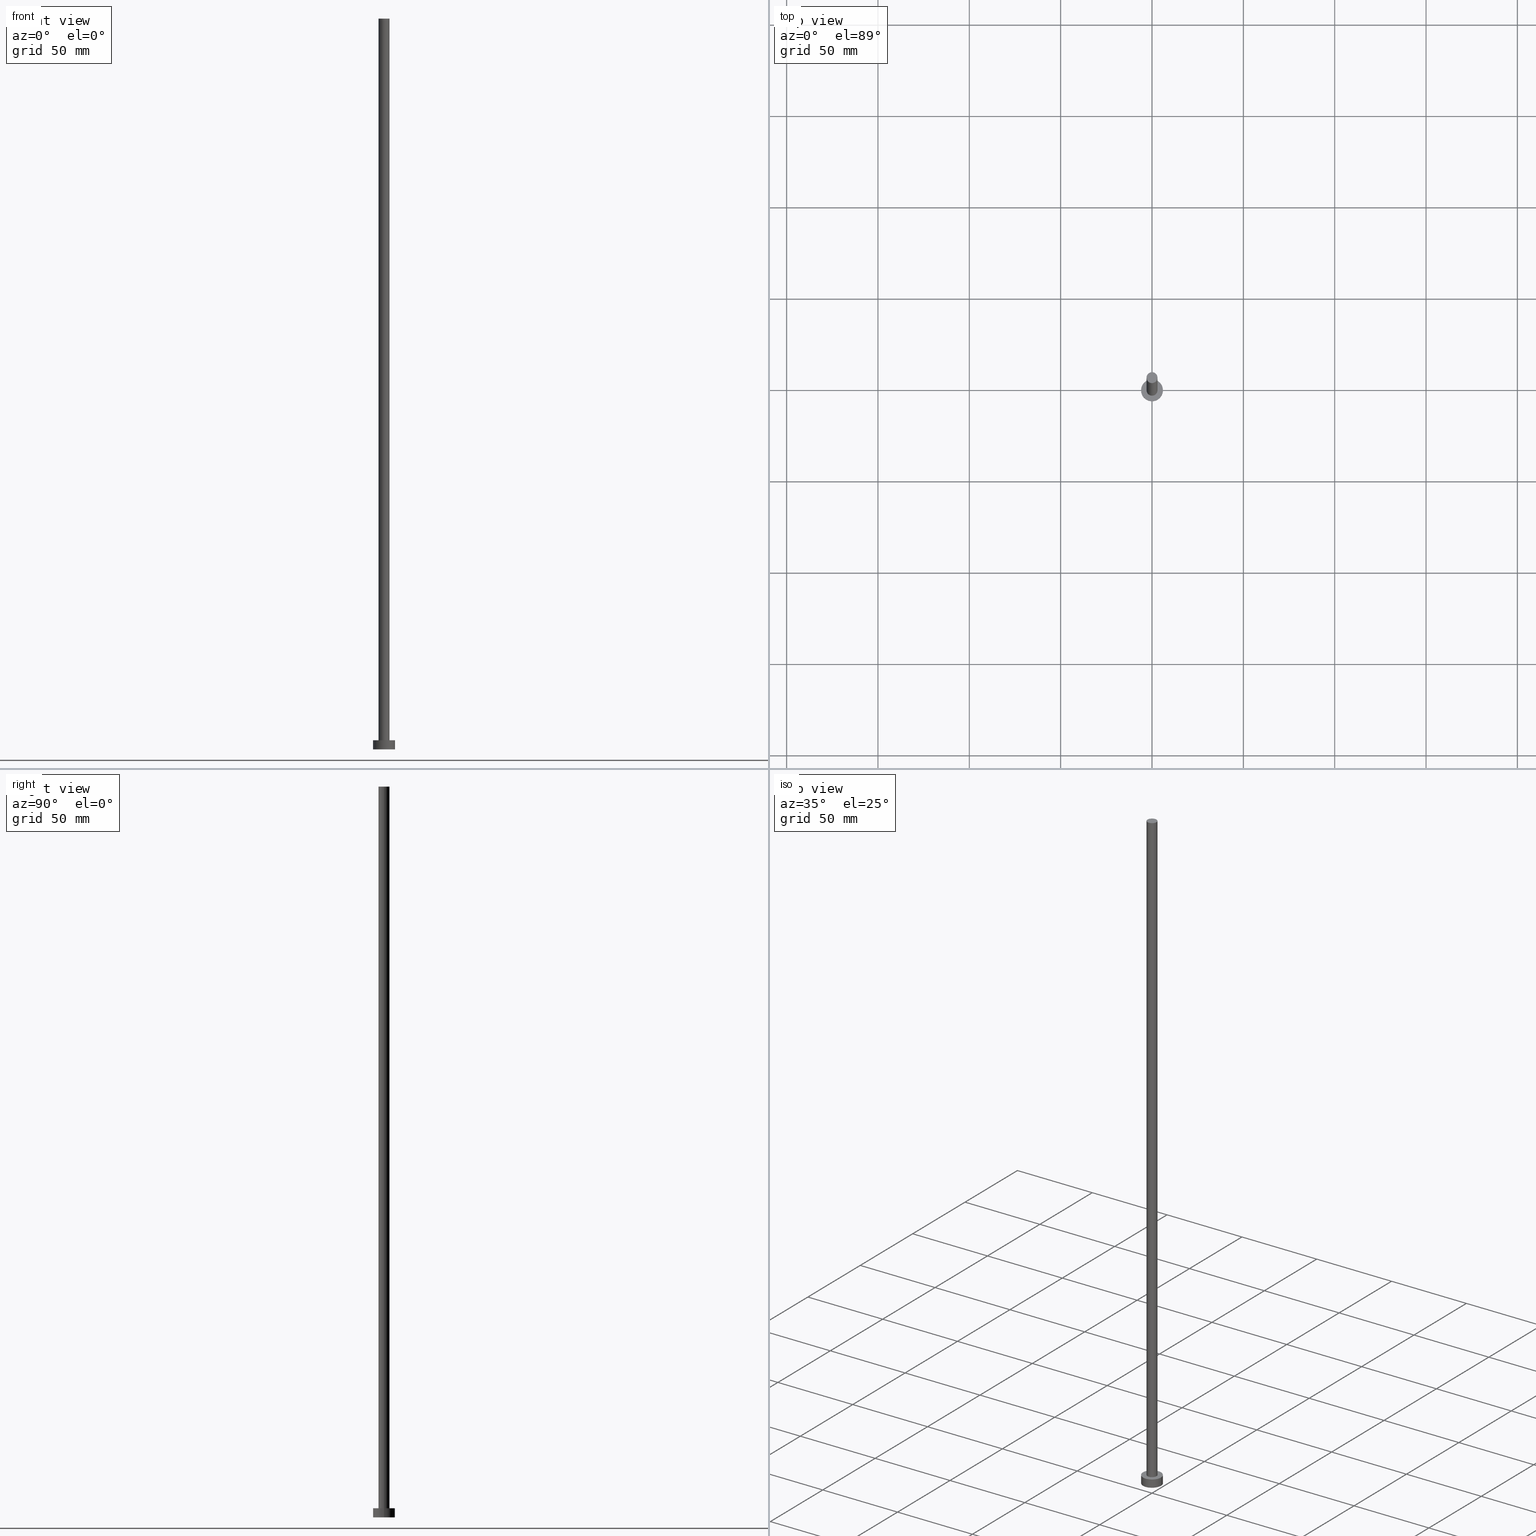
[diagram: canonical four-view strip — front | top / right | iso, engineering-drawing reading convention]
A machine part, canonical four-view strip (front | top / right | iso — engineering-drawing reading convention). The complete STEP part file that produces these views, byte-faithful:
ISO-10303-21;
HEADER;
FILE_DESCRIPTION (( 'STEP AP203' ),
    '1' );
FILE_NAME ('0809.STEP',
    '2023-02-13T12:37:12',
    ( '' ),
    ( '' ),
    'SwSTEP 2.0',
    'SolidWorks 2019',
    '' );
FILE_SCHEMA (( 'CONFIG_CONTROL_DESIGN' ));
ENDSEC;

DATA;
#1 = DIRECTION ( 'NONE',  ( 1.000000000000000000, 0.000000000000000000, -0.000000000000000000 ) ) ;
#2 = CARTESIAN_POINT ( 'NONE',  ( 0.000000000000000000, 0.000000000000000000, 400.0000000000000000 ) ) ;
#3 = APPROVAL_STATUS ( 'not_yet_approved' ) ;
#4 = PERSON ( 'NEUR�EN�', 'NEUR�EN�', 'NEUR�EN�', ('NEUR�EN�'), ('NEUR�EN�'), ('NEUR�EN�') ) ;
#5 = LOCAL_TIME ( 13, 37, 12.00000000000000000, #134 ) ;
#6 = LINE ( 'NONE', #140, #223 ) ;
#7 = ADVANCED_FACE ( 'NONE', ( #64 ), #229, .T. ) ;
#8 = ORIENTED_EDGE ( 'NONE', *, *, #119, .F. ) ;
#9 = EDGE_LOOP ( 'NONE', ( #25, #60, #41, #22 ) ) ;
#10 = DIRECTION ( 'NONE',  ( 0.000000000000000000, 0.000000000000000000, 1.000000000000000000 ) ) ;
#11 = FACE_OUTER_BOUND ( 'NONE', #185, .T. ) ;
#12 = EDGE_CURVE ( 'NONE', #82, #45, #171, .T. ) ;
#13 = CARTESIAN_POINT ( 'NONE',  ( 0.000000000000000000, 0.000000000000000000, 5.000000000000000000 ) ) ;
#14 = VECTOR ( 'NONE', #46, 1000.000000000000000 ) ;
#15 = DATE_TIME_ROLE ( 'classification_date' ) ;
#16 = DIRECTION ( 'NONE',  ( -0.000000000000000000, -0.000000000000000000, -1.000000000000000000 ) ) ;
#17 = PLANE ( 'NONE',  #74 ) ;
#18 = PERSON_AND_ORGANIZATION_ROLE ( 'classification_officer' ) ;
#19 = DIRECTION ( 'NONE',  ( 1.000000000000000000, 0.000000000000000000, 0.000000000000000000 ) ) ;
#20 = CALENDAR_DATE ( 2023, 13, 2 ) ;
#21 = DATE_TIME_ROLE ( 'creation_date' ) ;
#22 = ORIENTED_EDGE ( 'NONE', *, *, #99, .F. ) ;
#23 = LOCAL_TIME ( 13, 37, 12.00000000000000000, #222 ) ;
#24 = ORIENTED_EDGE ( 'NONE', *, *, #120, .T. ) ;
#25 = ORIENTED_EDGE ( 'NONE', *, *, #236, .F. ) ;
#26 = CARTESIAN_POINT ( 'NONE',  ( 0.000000000000000000, 0.000000000000000000, 0.000000000000000000 ) ) ;
#27 = APPROVAL_PERSON_ORGANIZATION ( #240, #245, #159 ) ;
#28 = CC_DESIGN_PERSON_AND_ORGANIZATION_ASSIGNMENT ( #190, #253, ( #76 ) ) ;
#29 = PLANE ( 'NONE',  #204 ) ;
#30 = CARTESIAN_POINT ( 'NONE',  ( -3.000000000000000444, 0.000000000000000000, 400.0000000000000000 ) ) ;
#31 = CC_DESIGN_APPROVAL ( #248, ( #76 ) ) ;
#32 = CIRCLE ( 'NONE', #58, 3.000000000000000444 ) ;
#33 = APPROVAL_ROLE ( '' ) ;
#34 = APPLICATION_CONTEXT ( 'configuration controlled 3d designs of mechanical parts and assemblies' ) ;
#35 = CALENDAR_DATE ( 2023, 13, 2 ) ;
#36 = DATE_AND_TIME ( #97, #5 ) ;
#37 = ORIENTED_EDGE ( 'NONE', *, *, #38, .T. ) ;
#38 = EDGE_CURVE ( 'NONE', #186, #246, #6, .T. ) ;
#39 = ORIENTED_EDGE ( 'NONE', *, *, #120, .F. ) ;
#40 = LOCAL_TIME ( 13, 37, 12.00000000000000000, #177 ) ;
#41 = ORIENTED_EDGE ( 'NONE', *, *, #12, .T. ) ;
#42 = CARTESIAN_POINT ( 'NONE',  ( 0.000000000000000000, 0.000000000000000000, 400.0000000000000000 ) ) ;
#43 = EDGE_CURVE ( 'NONE', #186, #142, #78, .T. ) ;
#44 = VECTOR ( 'NONE', #168, 1000.000000000000000 ) ;
#45 = VERTEX_POINT ( 'NONE', #254 ) ;
#46 = DIRECTION ( 'NONE',  ( -0.000000000000000000, -0.000000000000000000, -1.000000000000000000 ) ) ;
#47 = CARTESIAN_POINT ( 'NONE',  ( 0.000000000000000000, 0.000000000000000000, 5.000000000000000000 ) ) ;
#48 = APPLICATION_CONTEXT ( 'configuration controlled 3d designs of mechanical parts and assemblies' ) ;
#49 = DATE_AND_TIME ( #35, #90 ) ;
#50 = LINE ( 'NONE', #207, #67 ) ;
#51 = PRODUCT_DEFINITION_FORMATION_WITH_SPECIFIED_SOURCE ( 'LIBOVOLN�', '', #179, .NOT_KNOWN. ) ;
#52 = PLANE ( 'NONE',  #188 ) ;
#53 =( LENGTH_UNIT ( ) NAMED_UNIT ( * ) SI_UNIT ( .MILLI., .METRE. ) );
#54 = DIRECTION ( 'NONE',  ( -1.000000000000000000, 0.000000000000000000, 0.000000000000000000 ) ) ;
#55 = CC_DESIGN_APPROVAL ( #245, ( #51 ) ) ;
#56 =( GEOMETRIC_REPRESENTATION_CONTEXT ( 3 ) GLOBAL_UNCERTAINTY_ASSIGNED_CONTEXT ( ( #209 ) ) GLOBAL_UNIT_ASSIGNED_CONTEXT ( ( #53, #237, #136 ) ) REPRESENTATION_CONTEXT ( 'NONE', 'WORKASPACE' ) );
#57 = CALENDAR_DATE ( 2023, 13, 2 ) ;
#58 = AXIS2_PLACEMENT_3D ( 'NONE', #47, #191, #230 ) ;
#59 = EDGE_LOOP ( 'NONE', ( #83, #105 ) ) ;
#60 = ORIENTED_EDGE ( 'NONE', *, *, #169, .T. ) ;
#61 = ADVANCED_FACE ( 'NONE', ( #89, #231 ), #52, .T. ) ;
#62 = EDGE_LOOP ( 'NONE', ( #121, #201 ) ) ;
#63 = AXIS2_PLACEMENT_3D ( 'NONE', #234, #178, #19 ) ;
#64 = FACE_OUTER_BOUND ( 'NONE', #205, .T. ) ;
#65 = DIRECTION ( 'NONE',  ( 1.000000000000000000, 0.000000000000000000, 0.000000000000000000 ) ) ;
#66 = CARTESIAN_POINT ( 'NONE',  ( 0.000000000000000000, 0.000000000000000000, 5.000000000000000000 ) ) ;
#67 = VECTOR ( 'NONE', #110, 1000.000000000000000 ) ;
#68 = CARTESIAN_POINT ( 'NONE',  ( -3.000000000000000444, 0.000000000000000000, 5.000000000000000000 ) ) ;
#69 = CARTESIAN_POINT ( 'NONE',  ( 0.000000000000000000, 0.000000000000000000, 0.000000000000000000 ) ) ;
#70 = CC_DESIGN_PERSON_AND_ORGANIZATION_ASSIGNMENT ( #195, #117, ( #51 ) ) ;
#71 = CARTESIAN_POINT ( 'NONE',  ( 0.000000000000000000, 0.000000000000000000, 400.0000000000000000 ) ) ;
#72 = DIRECTION ( 'NONE',  ( 0.000000000000000000, 0.000000000000000000, 1.000000000000000000 ) ) ;
#73 = CARTESIAN_POINT ( 'NONE',  ( 3.000000000000000444, 3.673940397442059868E-16, 400.0000000000000000 ) ) ;
#74 = AXIS2_PLACEMENT_3D ( 'NONE', #96, #88, #1 ) ;
#75 = APPROVAL_DATE_TIME ( #218, #200 ) ;
#76 = PRODUCT_DEFINITION ( 'NEZN�M�', '', #51, #87 ) ;
#77 = APPROVAL_DATE_TIME ( #81, #245 ) ;
#78 = CIRCLE ( 'NONE', #156, 3.000000000000000444 ) ;
#79 = CLOSED_SHELL ( 'NONE', ( #7, #162, #139, #61, #181, #221, #157 ) ) ;
#80 = AXIS2_PLACEMENT_3D ( 'NONE', #66, #250, #109 ) ;
#81 = DATE_AND_TIME ( #20, #239 ) ;
#82 = VERTEX_POINT ( 'NONE', #252 ) ;
#83 = ORIENTED_EDGE ( 'NONE', *, *, #208, .F. ) ;
#84 = ORIENTED_EDGE ( 'NONE', *, *, #43, .F. ) ;
#85 = EDGE_LOOP ( 'NONE', ( #167, #244 ) ) ;
#86 = EDGE_CURVE ( 'NONE', #246, #146, #32, .T. ) ;
#87 = DESIGN_CONTEXT ( 'detailed design', #48, 'design' ) ;
#88 = DIRECTION ( 'NONE',  ( 0.000000000000000000, 0.000000000000000000, 1.000000000000000000 ) ) ;
#89 = FACE_BOUND ( 'NONE', #85, .T. ) ;
#90 = LOCAL_TIME ( 13, 37, 12.00000000000000000, #118 ) ;
#91 = DIRECTION ( 'NONE',  ( -0.000000000000000000, -0.000000000000000000, -1.000000000000000000 ) ) ;
#92 = SHAPE_DEFINITION_REPRESENTATION ( #241, #164 ) ;
#93 = LINE ( 'NONE', #132, #14 ) ;
#94 = APPROVAL_STATUS ( 'not_yet_approved' ) ;
#95 = DIRECTION ( 'NONE',  ( 0.000000000000000000, 0.000000000000000000, 1.000000000000000000 ) ) ;
#96 = CARTESIAN_POINT ( 'NONE',  ( 0.000000000000000000, 0.000000000000000000, 400.0000000000000000 ) ) ;
#97 = CALENDAR_DATE ( 2023, 13, 2 ) ;
#98 = PERSON_AND_ORGANIZATION ( #4, #143 ) ;
#99 = EDGE_CURVE ( 'NONE', #107, #45, #173, .T. ) ;
#100 = DIRECTION ( 'NONE',  ( 0.000000000000000000, 0.000000000000000000, 1.000000000000000000 ) ) ;
#101 = PRODUCT_RELATED_PRODUCT_CATEGORY ( 'detail', '', ( #179 ) ) ;
#102 = ORIENTED_EDGE ( 'NONE', *, *, #38, .F. ) ;
#103 = AXIS2_PLACEMENT_3D ( 'NONE', #2, #16, #54 ) ;
#104 = CC_DESIGN_DATE_AND_TIME_ASSIGNMENT ( #36, #15, ( #114 ) ) ;
#105 = ORIENTED_EDGE ( 'NONE', *, *, #12, .F. ) ;
#106 = ORIENTED_EDGE ( 'NONE', *, *, #217, .F. ) ;
#107 = VERTEX_POINT ( 'NONE', #126 ) ;
#108 = AXIS2_PLACEMENT_3D ( 'NONE', #71, #152, #147 ) ;
#109 = DIRECTION ( 'NONE',  ( -1.000000000000000000, 0.000000000000000000, 0.000000000000000000 ) ) ;
#110 = DIRECTION ( 'NONE',  ( -0.000000000000000000, -0.000000000000000000, -1.000000000000000000 ) ) ;
#111 = CYLINDRICAL_SURFACE ( 'NONE', #158, 6.000000000000000888 ) ;
#112 = CIRCLE ( 'NONE', #228, 6.000000000000000888 ) ;
#113 = CARTESIAN_POINT ( 'NONE',  ( 0.000000000000000000, 0.000000000000000000, 5.000000000000000000 ) ) ;
#114 = SECURITY_CLASSIFICATION ( '', '', #151 ) ;
#115 = PERSON_AND_ORGANIZATION ( #4, #143 ) ;
#116 = CARTESIAN_POINT ( 'NONE',  ( 6.000000000000000888, 7.347880794884120722E-16, 5.000000000000000000 ) ) ;
#117 = PERSON_AND_ORGANIZATION_ROLE ( 'creator' ) ;
#118 = COORDINATED_UNIVERSAL_TIME_OFFSET ( 1, 0, .AHEAD. ) ;
#119 = EDGE_CURVE ( 'NONE', #142, #186, #183, .T. ) ;
#120 = EDGE_CURVE ( 'NONE', #142, #146, #93, .T. ) ;
#121 = ORIENTED_EDGE ( 'NONE', *, *, #217, .T. ) ;
#122 = DIRECTION ( 'NONE',  ( 0.000000000000000000, 0.000000000000000000, 1.000000000000000000 ) ) ;
#123 = AXIS2_PLACEMENT_3D ( 'NONE', #26, #10, #65 ) ;
#124 = VERTEX_POINT ( 'NONE', #116 ) ;
#125 = CARTESIAN_POINT ( 'NONE',  ( 0.000000000000000000, 0.000000000000000000, 400.0000000000000000 ) ) ;
#126 = CARTESIAN_POINT ( 'NONE',  ( -6.000000000000000888, 0.000000000000000000, 5.000000000000000000 ) ) ;
#127 = FACE_OUTER_BOUND ( 'NONE', #9, .T. ) ;
#128 = APPROVAL_DATE_TIME ( #49, #248 ) ;
#129 = DIRECTION ( 'NONE',  ( 1.000000000000000000, 0.000000000000000000, -0.000000000000000000 ) ) ;
#130 = DIRECTION ( 'NONE',  ( 1.000000000000000000, 0.000000000000000000, 0.000000000000000000 ) ) ;
#131 = CIRCLE ( 'NONE', #227, 3.000000000000000444 ) ;
#132 = CARTESIAN_POINT ( 'NONE',  ( -3.000000000000000444, 0.000000000000000000, 400.0000000000000000 ) ) ;
#133 = DIRECTION ( 'NONE',  ( 1.000000000000000000, 0.000000000000000000, 0.000000000000000000 ) ) ;
#134 = COORDINATED_UNIVERSAL_TIME_OFFSET ( 1, 0, .AHEAD. ) ;
#135 = APPLICATION_PROTOCOL_DEFINITION ( 'international standard', 'config_control_design', 1994, #48 ) ;
#136 =( NAMED_UNIT ( * ) SI_UNIT ( $, .STERADIAN. ) SOLID_ANGLE_UNIT ( ) );
#137 = APPROVAL_PERSON_ORGANIZATION ( #216, #248, #33 ) ;
#138 = AXIS2_PLACEMENT_3D ( 'NONE', #125, #206, #249 ) ;
#139 = ADVANCED_FACE ( 'NONE', ( #11 ), #194, .T. ) ;
#140 = CARTESIAN_POINT ( 'NONE',  ( 3.000000000000000444, 3.673940397442059868E-16, 400.0000000000000000 ) ) ;
#141 = ORIENTED_EDGE ( 'NONE', *, *, #99, .T. ) ;
#142 = VERTEX_POINT ( 'NONE', #30 ) ;
#143 = ORGANIZATION ( 'NEUR�EN�', 'NEUR�EN�', '' ) ;
#144 = CC_DESIGN_PERSON_AND_ORGANIZATION_ASSIGNMENT ( #192, #18, ( #114 ) ) ;
#145 = APPROVAL_PERSON_ORGANIZATION ( #98, #200, #155 ) ;
#146 = VERTEX_POINT ( 'NONE', #68 ) ;
#147 = DIRECTION ( 'NONE',  ( 1.000000000000000000, 0.000000000000000000, 0.000000000000000000 ) ) ;
#148 = CC_DESIGN_DATE_AND_TIME_ASSIGNMENT ( #243, #21, ( #76 ) ) ;
#149 = FACE_OUTER_BOUND ( 'NONE', #165, .T. ) ;
#150 = MANIFOLD_SOLID_BREP ( 'P�idat vysunut�m3', #79 ) ;
#151 = SECURITY_CLASSIFICATION_LEVEL ( 'unclassified' ) ;
#152 = DIRECTION ( 'NONE',  ( 0.000000000000000000, 0.000000000000000000, 1.000000000000000000 ) ) ;
#153 = CYLINDRICAL_SURFACE ( 'NONE', #103, 3.000000000000000444 ) ;
#154 = AXIS2_PLACEMENT_3D ( 'NONE', #172, #100, #235 ) ;
#155 = APPROVAL_ROLE ( '' ) ;
#156 = AXIS2_PLACEMENT_3D ( 'NONE', #42, #214, #176 ) ;
#157 = ADVANCED_FACE ( 'NONE', ( #149 ), #17, .T. ) ;
#158 = AXIS2_PLACEMENT_3D ( 'NONE', #13, #91, #233 ) ;
#159 = APPROVAL_ROLE ( '' ) ;
#160 = ORIENTED_EDGE ( 'NONE', *, *, #43, .T. ) ;
#161 = ORIENTED_EDGE ( 'NONE', *, *, #208, .T. ) ;
#162 = ADVANCED_FACE ( 'NONE', ( #127 ), #111, .T. ) ;
#163 = ORIENTED_EDGE ( 'NONE', *, *, #189, .T. ) ;
#164 = ADVANCED_BREP_SHAPE_REPRESENTATION ( '0809', ( #150, #251 ), #56 ) ;
#165 = EDGE_LOOP ( 'NONE', ( #203, #160 ) ) ;
#166 = CIRCLE ( 'NONE', #63, 6.000000000000000888 ) ;
#167 = ORIENTED_EDGE ( 'NONE', *, *, #189, .F. ) ;
#168 = DIRECTION ( 'NONE',  ( -0.000000000000000000, -0.000000000000000000, -1.000000000000000000 ) ) ;
#169 = EDGE_CURVE ( 'NONE', #124, #82, #50, .T. ) ;
#170 = DIRECTION ( 'NONE',  ( 0.000000000000000000, 0.000000000000000000, 1.000000000000000000 ) ) ;
#171 = CIRCLE ( 'NONE', #123, 6.000000000000000888 ) ;
#172 = CARTESIAN_POINT ( 'NONE',  ( 0.000000000000000000, 0.000000000000000000, 5.000000000000000000 ) ) ;
#173 = LINE ( 'NONE', #211, #44 ) ;
#174 = FACE_OUTER_BOUND ( 'NONE', #184, .T. ) ;
#175 = PERSON_AND_ORGANIZATION ( #4, #143 ) ;
#176 = DIRECTION ( 'NONE',  ( 1.000000000000000000, 0.000000000000000000, 0.000000000000000000 ) ) ;
#177 = COORDINATED_UNIVERSAL_TIME_OFFSET ( 1, 0, .AHEAD. ) ;
#178 = DIRECTION ( 'NONE',  ( 0.000000000000000000, 0.000000000000000000, 1.000000000000000000 ) ) ;
#179 = PRODUCT ( '0809', '0809', '', ( #255 ) ) ;
#180 = CC_DESIGN_SECURITY_CLASSIFICATION ( #114, ( #51 ) ) ;
#181 = ADVANCED_FACE ( 'NONE', ( #210 ), #29, .F. ) ;
#182 = ORIENTED_EDGE ( 'NONE', *, *, #86, .T. ) ;
#183 = CIRCLE ( 'NONE', #108, 3.000000000000000444 ) ;
#184 = EDGE_LOOP ( 'NONE', ( #102, #8, #24, #163 ) ) ;
#185 = EDGE_LOOP ( 'NONE', ( #187, #106, #141, #161 ) ) ;
#186 = VERTEX_POINT ( 'NONE', #73 ) ;
#187 = ORIENTED_EDGE ( 'NONE', *, *, #169, .F. ) ;
#188 = AXIS2_PLACEMENT_3D ( 'NONE', #113, #170, #129 ) ;
#189 = EDGE_CURVE ( 'NONE', #146, #246, #131, .T. ) ;
#190 = PERSON_AND_ORGANIZATION ( #4, #143 ) ;
#191 = DIRECTION ( 'NONE',  ( 0.000000000000000000, 0.000000000000000000, 1.000000000000000000 ) ) ;
#192 = PERSON_AND_ORGANIZATION ( #4, #143 ) ;
#193 = CARTESIAN_POINT ( 'NONE',  ( 0.000000000000000000, 0.000000000000000000, 5.000000000000000000 ) ) ;
#194 = CYLINDRICAL_SURFACE ( 'NONE', #80, 6.000000000000000888 ) ;
#195 = PERSON_AND_ORGANIZATION ( #4, #143 ) ;
#196 = APPLICATION_PROTOCOL_DEFINITION ( 'international standard', 'config_control_design', 1994, #34 ) ;
#197 = DIRECTION ( 'NONE',  ( 1.000000000000000000, 0.000000000000000000, 0.000000000000000000 ) ) ;
#198 = CC_DESIGN_PERSON_AND_ORGANIZATION_ASSIGNMENT ( #175, #199, ( #51 ) ) ;
#199 = PERSON_AND_ORGANIZATION_ROLE ( 'design_supplier' ) ;
#200 = APPROVAL ( #94, 'NEUR�EN�' ) ;
#201 = ORIENTED_EDGE ( 'NONE', *, *, #236, .T. ) ;
#202 = CC_DESIGN_APPROVAL ( #200, ( #114 ) ) ;
#203 = ORIENTED_EDGE ( 'NONE', *, *, #119, .T. ) ;
#204 = AXIS2_PLACEMENT_3D ( 'NONE', #226, #122, #247 ) ;
#205 = EDGE_LOOP ( 'NONE', ( #84, #37, #182, #39 ) ) ;
#206 = DIRECTION ( 'NONE',  ( -0.000000000000000000, -0.000000000000000000, -1.000000000000000000 ) ) ;
#207 = CARTESIAN_POINT ( 'NONE',  ( 6.000000000000000888, 7.347880794884120722E-16, 5.000000000000000000 ) ) ;
#208 = EDGE_CURVE ( 'NONE', #45, #82, #166, .T. ) ;
#209 = UNCERTAINTY_MEASURE_WITH_UNIT (LENGTH_MEASURE( 1.000000000000000082E-05 ), #53, 'distance_accuracy_value', 'NONE');
#210 = FACE_OUTER_BOUND ( 'NONE', #59, .T. ) ;
#211 = CARTESIAN_POINT ( 'NONE',  ( -6.000000000000000888, 0.000000000000000000, 5.000000000000000000 ) ) ;
#212 = CARTESIAN_POINT ( 'NONE',  ( 3.000000000000000444, 3.673940397442059868E-16, 5.000000000000000000 ) ) ;
#213 = DIRECTION ( 'NONE',  ( 0.000000000000000000, 0.000000000000000000, 1.000000000000000000 ) ) ;
#214 = DIRECTION ( 'NONE',  ( 0.000000000000000000, 0.000000000000000000, 1.000000000000000000 ) ) ;
#215 = CARTESIAN_POINT ( 'NONE',  ( 0.000000000000000000, 0.000000000000000000, 5.000000000000000000 ) ) ;
#216 = PERSON_AND_ORGANIZATION ( #4, #143 ) ;
#217 = EDGE_CURVE ( 'NONE', #107, #124, #219, .T. ) ;
#218 = DATE_AND_TIME ( #238, #40 ) ;
#219 = CIRCLE ( 'NONE', #154, 6.000000000000000888 ) ;
#220 = APPROVAL_STATUS ( 'not_yet_approved' ) ;
#221 = ADVANCED_FACE ( 'NONE', ( #174 ), #153, .T. ) ;
#222 = COORDINATED_UNIVERSAL_TIME_OFFSET ( 1, 0, .AHEAD. ) ;
#223 = VECTOR ( 'NONE', #224, 1000.000000000000000 ) ;
#224 = DIRECTION ( 'NONE',  ( -0.000000000000000000, -0.000000000000000000, -1.000000000000000000 ) ) ;
#225 = CC_DESIGN_PERSON_AND_ORGANIZATION_ASSIGNMENT ( #115, #232, ( #179 ) ) ;
#226 = CARTESIAN_POINT ( 'NONE',  ( 0.000000000000000000, 0.000000000000000000, 0.000000000000000000 ) ) ;
#227 = AXIS2_PLACEMENT_3D ( 'NONE', #193, #72, #197 ) ;
#228 = AXIS2_PLACEMENT_3D ( 'NONE', #215, #95, #130 ) ;
#229 = CYLINDRICAL_SURFACE ( 'NONE', #138, 3.000000000000000444 ) ;
#230 = DIRECTION ( 'NONE',  ( 1.000000000000000000, 0.000000000000000000, 0.000000000000000000 ) ) ;
#231 = FACE_OUTER_BOUND ( 'NONE', #62, .T. ) ;
#232 = PERSON_AND_ORGANIZATION_ROLE ( 'design_owner' ) ;
#233 = DIRECTION ( 'NONE',  ( -1.000000000000000000, 0.000000000000000000, 0.000000000000000000 ) ) ;
#234 = CARTESIAN_POINT ( 'NONE',  ( 0.000000000000000000, 0.000000000000000000, 0.000000000000000000 ) ) ;
#235 = DIRECTION ( 'NONE',  ( 1.000000000000000000, 0.000000000000000000, 0.000000000000000000 ) ) ;
#236 = EDGE_CURVE ( 'NONE', #124, #107, #112, .T. ) ;
#237 =( NAMED_UNIT ( * ) PLANE_ANGLE_UNIT ( ) SI_UNIT ( $, .RADIAN. ) );
#238 = CALENDAR_DATE ( 2023, 13, 2 ) ;
#239 = LOCAL_TIME ( 13, 37, 12.00000000000000000, #242 ) ;
#240 = PERSON_AND_ORGANIZATION ( #4, #143 ) ;
#241 = PRODUCT_DEFINITION_SHAPE ( 'NONE', 'NONE',  #76 ) ;
#242 = COORDINATED_UNIVERSAL_TIME_OFFSET ( 1, 0, .AHEAD. ) ;
#243 = DATE_AND_TIME ( #57, #23 ) ;
#244 = ORIENTED_EDGE ( 'NONE', *, *, #86, .F. ) ;
#245 = APPROVAL ( #3, 'NEUR�EN�' ) ;
#246 = VERTEX_POINT ( 'NONE', #212 ) ;
#247 = DIRECTION ( 'NONE',  ( 1.000000000000000000, 0.000000000000000000, -0.000000000000000000 ) ) ;
#248 = APPROVAL ( #220, 'NEUR�EN�' ) ;
#249 = DIRECTION ( 'NONE',  ( -1.000000000000000000, 0.000000000000000000, 0.000000000000000000 ) ) ;
#250 = DIRECTION ( 'NONE',  ( -0.000000000000000000, -0.000000000000000000, -1.000000000000000000 ) ) ;
#251 = AXIS2_PLACEMENT_3D ( 'NONE', #69, #213, #133 ) ;
#252 = CARTESIAN_POINT ( 'NONE',  ( 6.000000000000000888, 7.347880794884120722E-16, 0.000000000000000000 ) ) ;
#253 = PERSON_AND_ORGANIZATION_ROLE ( 'creator' ) ;
#254 = CARTESIAN_POINT ( 'NONE',  ( -6.000000000000000888, 0.000000000000000000, 0.000000000000000000 ) ) ;
#255 = MECHANICAL_CONTEXT ( 'NONE', #34, 'mechanical' ) ;
ENDSEC;
END-ISO-10303-21;
